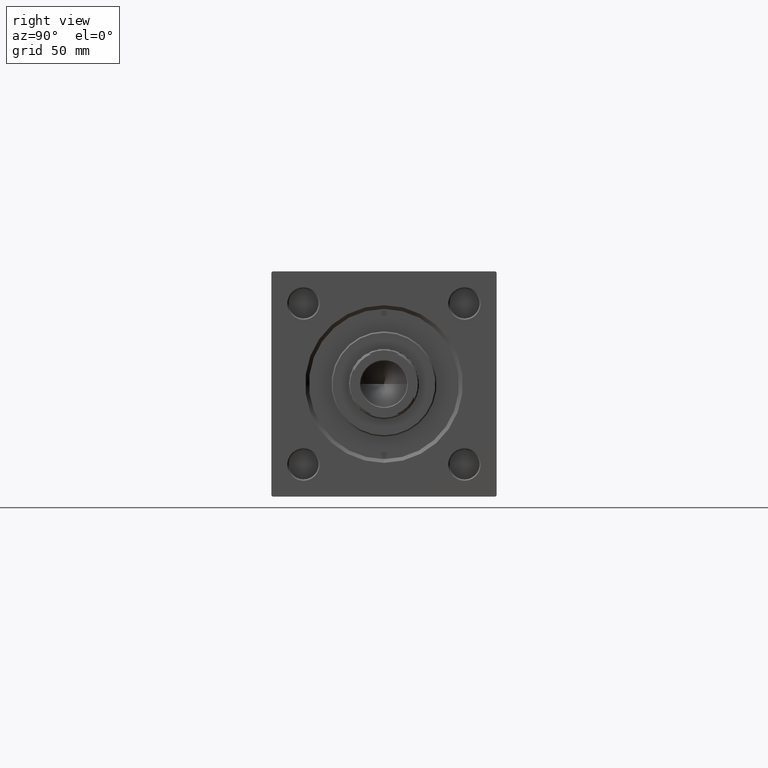
[diagram: clean part render]
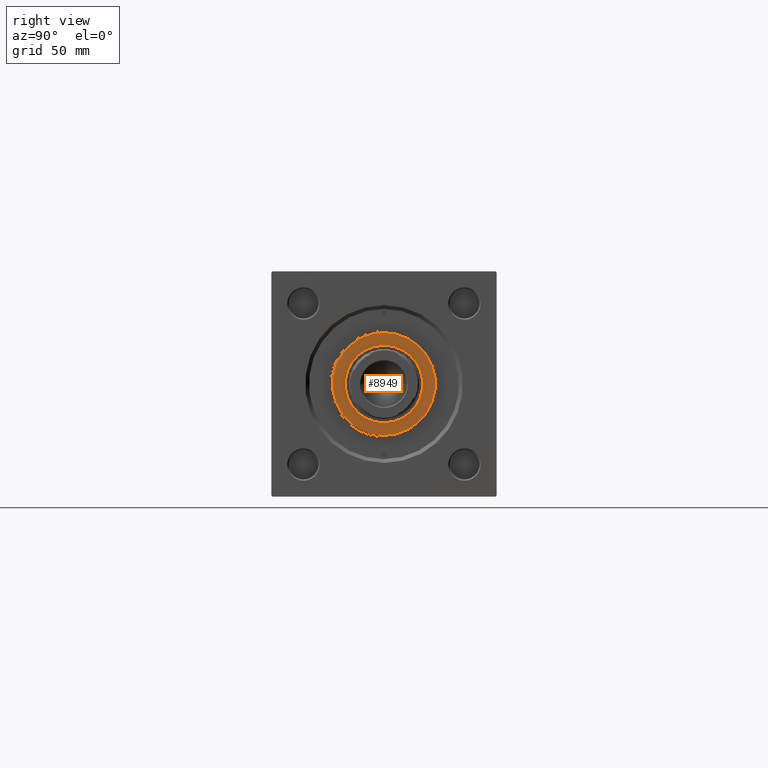
[diagram: same view with one face highlighted and labeled with its STEP entity id]
A machine part, right view. The second image highlights one B-rep face of the part: STEP entity #8949.
In plain terms, the highlighted planar face has unit normal (1, 0, 0).
Its self-contained STEP definition (entity closure, byte-faithful):
#218 = ORIENTED_EDGE ( 'NONE', *, *, #3887, .T. ) ;
#358 = DIRECTION ( 'NONE',  ( 0.000000000000000000, 0.000000000000000000, 1.000000000000000000 ) ) ;
#455 = AXIS2_PLACEMENT_3D ( 'NONE', #49353, #14941, #14433 ) ;
#1233 = AXIS2_PLACEMENT_3D ( 'NONE', #19706, #358, #8256 ) ;
#3035 = CARTESIAN_POINT ( 'NONE',  ( 0.000000000000000000, 0.000000000000000000, 39.69999999999999574 ) ) ;
#3134 = CIRCLE ( 'NONE', #31565, 20.50000000000000355 ) ;
#3887 = EDGE_CURVE ( 'NONE', #21844, #39721, #28062, .T. ) ;
#7039 = FACE_OUTER_BOUND ( 'NONE', #16971, .T. ) ;
#8256 = DIRECTION ( 'NONE',  ( 1.000000000000000000, 0.000000000000000000, 0.000000000000000000 ) ) ;
#8949 = ADVANCED_FACE ( 'NONE', ( #26361, #7039 ), #41419, .T. ) ;
#9780 = CARTESIAN_POINT ( 'NONE',  ( 0.000000000000000000, 0.000000000000000000, 39.69999999999999574 ) ) ;
#9880 = CARTESIAN_POINT ( 'NONE',  ( 15.50000000000000000, 0.000000000000000000, 39.69999999999999574 ) ) ;
#10815 = VERTEX_POINT ( 'NONE', #9880 ) ;
#13268 = AXIS2_PLACEMENT_3D ( 'NONE', #3035, #23111, #33810 ) ;
#14261 = EDGE_LOOP ( 'NONE', ( #22006, #17504 ) ) ;
#14433 = DIRECTION ( 'NONE',  ( 1.000000000000000000, 0.000000000000000000, -0.000000000000000000 ) ) ;
#14941 = DIRECTION ( 'NONE',  ( 0.000000000000000000, 0.000000000000000000, 1.000000000000000000 ) ) ;
#16971 = EDGE_LOOP ( 'NONE', ( #218, #22328 ) ) ;
#17441 = EDGE_CURVE ( 'NONE', #39721, #21844, #3134, .T. ) ;
#17504 = ORIENTED_EDGE ( 'NONE', *, *, #45967, .F. ) ;
#17788 = CARTESIAN_POINT ( 'NONE',  ( -20.50000000000000355, 0.000000000000000000, 39.69999999999999574 ) ) ;
#19706 = CARTESIAN_POINT ( 'NONE',  ( 0.000000000000000000, 0.000000000000000000, 39.69999999999999574 ) ) ;
#21844 = VERTEX_POINT ( 'NONE', #17788 ) ;
#22006 = ORIENTED_EDGE ( 'NONE', *, *, #42514, .F. ) ;
#22328 = ORIENTED_EDGE ( 'NONE', *, *, #17441, .T. ) ;
#22345 = AXIS2_PLACEMENT_3D ( 'NONE', #28953, #44258, #24870 ) ;
#23034 = CIRCLE ( 'NONE', #13268, 15.50000000000000000 ) ;
#23111 = DIRECTION ( 'NONE',  ( 0.000000000000000000, 0.000000000000000000, 1.000000000000000000 ) ) ;
#24870 = DIRECTION ( 'NONE',  ( 1.000000000000000000, 0.000000000000000000, 0.000000000000000000 ) ) ;
#25300 = DIRECTION ( 'NONE',  ( 0.000000000000000000, 0.000000000000000000, 1.000000000000000000 ) ) ;
#26361 = FACE_BOUND ( 'NONE', #14261, .T. ) ;
#28062 = CIRCLE ( 'NONE', #1233, 20.50000000000000355 ) ;
#28953 = CARTESIAN_POINT ( 'NONE',  ( 0.000000000000000000, 0.000000000000000000, 39.69999999999999574 ) ) ;
#31565 = AXIS2_PLACEMENT_3D ( 'NONE', #9780, #25300, #43922 ) ;
#33810 = DIRECTION ( 'NONE',  ( 1.000000000000000000, 0.000000000000000000, 0.000000000000000000 ) ) ;
#34210 = CARTESIAN_POINT ( 'NONE',  ( -15.50000000000000000, 1.898202538678397557E-15, 39.69999999999999574 ) ) ;
#39236 = VERTEX_POINT ( 'NONE', #34210 ) ;
#39721 = VERTEX_POINT ( 'NONE', #44596 ) ;
#41419 = PLANE ( 'NONE',  #455 ) ;
#42514 = EDGE_CURVE ( 'NONE', #10815, #39236, #23034, .T. ) ;
#43922 = DIRECTION ( 'NONE',  ( 1.000000000000000000, 0.000000000000000000, 0.000000000000000000 ) ) ;
#44258 = DIRECTION ( 'NONE',  ( 0.000000000000000000, 0.000000000000000000, 1.000000000000000000 ) ) ;
#44596 = CARTESIAN_POINT ( 'NONE',  ( 20.50000000000000355, 2.541142108230758269E-15, 39.69999999999999574 ) ) ;
#45967 = EDGE_CURVE ( 'NONE', #39236, #10815, #50024, .T. ) ;
#49353 = CARTESIAN_POINT ( 'NONE',  ( 0.000000000000000000, 0.000000000000000000, 39.69999999999999574 ) ) ;
#50024 = CIRCLE ( 'NONE', #22345, 15.50000000000000000 ) ;